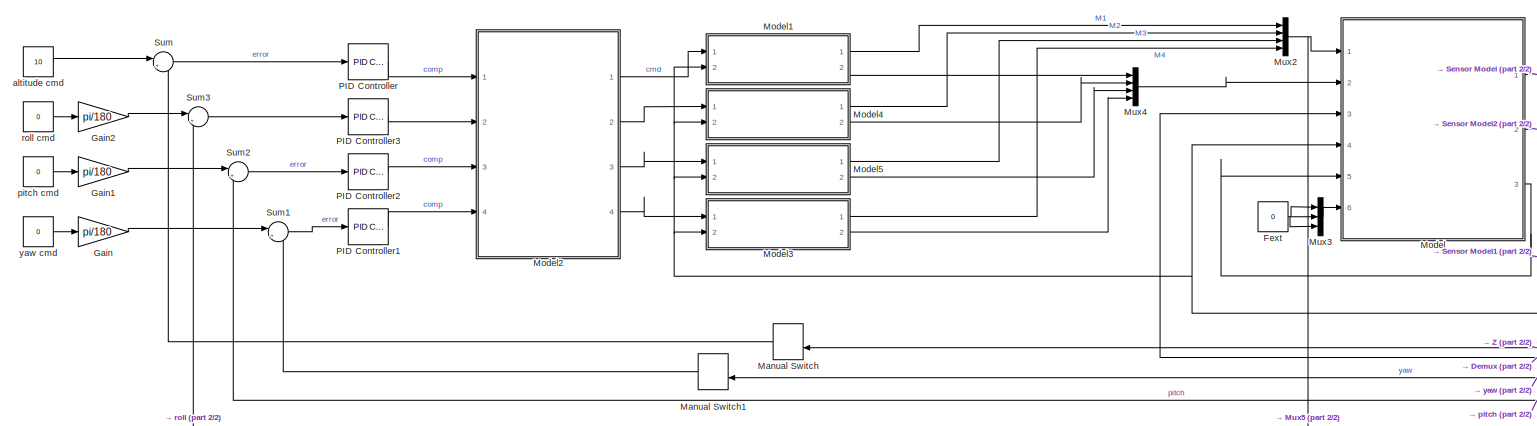
[diagram: root canvas - part 1/2, left side, full height]
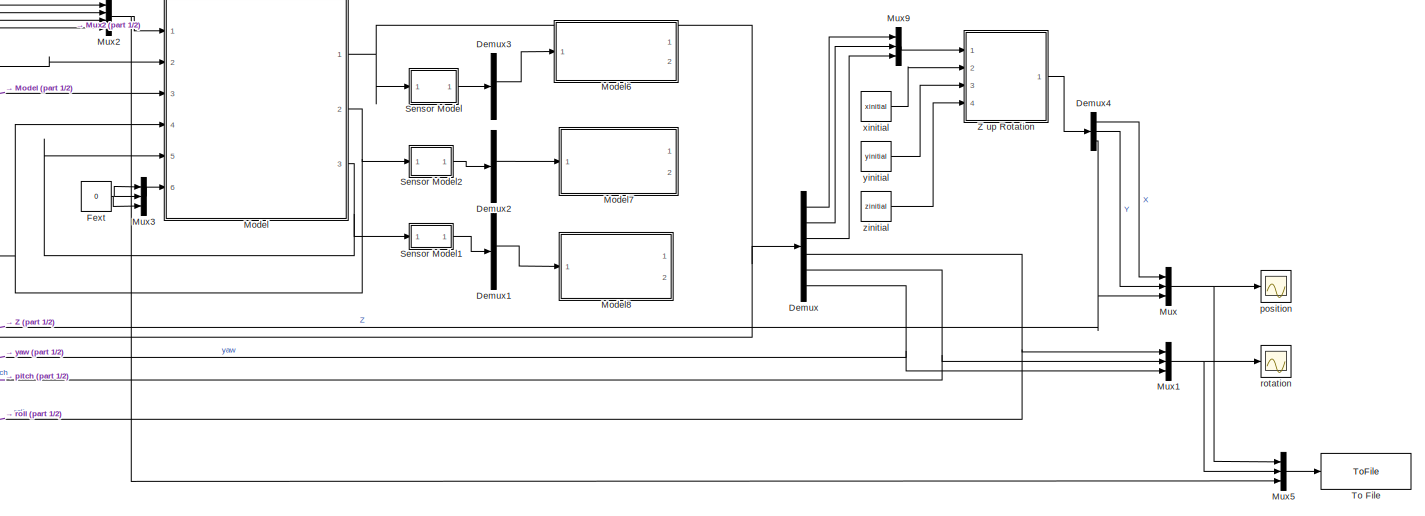
[diagram: root canvas - part 2/2, right side, full height]
MODEL slx_983945e5a16f
KIND model
CONFIG AbsTol = auto
CONFIG EnableMultiTasking = off
CONFIG FixedStep = interval
CONFIG MaxStep = auto
CONFIG MinStep = auto
CONFIG RelTol = 1e-3
CONFIG SampleTimeConstraint = Unconstrained
CONFIG Solver = FixedStepAuto
CONFIG SolverName = FixedStepAuto
CONFIG StartTime = 0.0
CONFIG StopTime = 20
BLOCK [Demux] Demux
  DisplayOption = bar
  Outputs = 6
  Ports = [1, 6]
BLOCK [Demux] Demux1
  DisplayOption = bar
  Outputs = 6
  Ports = [1, 6]
BLOCK [Demux] Demux2
  DisplayOption = bar
  Outputs = 6
  Ports = [1, 6]
BLOCK [Demux] Demux3
  DisplayOption = bar
  Outputs = 6
  Ports = [1, 6]
BLOCK [Demux] Demux4
  DisplayOption = bar
  Outputs = 3
  Ports = [1, 3]
BLOCK [Constant] Fext
  Value = 0
BLOCK [Gain] Gain
  Gain = pi/180
  OutDataTypeStr = Inherit: Inherit via internal rule
  ParamDataTypeStr = Inherit: Inherit via internal rule
  SaturateOnIntegerOverflow = off
BLOCK [Gain] Gain1
  Gain = pi/180
  OutDataTypeStr = Inherit: Inherit via internal rule
  ParamDataTypeStr = Inherit: Inherit via internal rule
  SaturateOnIntegerOverflow = off
BLOCK [Gain] Gain2
  Gain = pi/180
  OutDataTypeStr = Inherit: Inherit via internal rule
  ParamDataTypeStr = Inherit: Inherit via internal rule
  SaturateOnIntegerOverflow = off
BLOCK [ManualSwitch] Manual Switch
  CurrentSetting = 0
BLOCK [ManualSwitch] Manual Switch1
  CurrentSetting = 0
BLOCK [ModelReference] Model
  ModelNameDialog = QC_Dynamics
  ModelReferenceVersion = 1.34
  Ports = [6, 3]
  Variant = off
BLOCK [ModelReference] Model1
  ModelNameDialog = motorthrust
  ModelReferenceVersion = 1.28
  Ports = [2, 2]
  Variant = off
BLOCK [ModelReference] Model2
  ModelNameDialog = flightcontroller.slx
  ModelReferenceVersion = 1.19
  Ports = [4, 4]
  Variant = off
BLOCK [ModelReference] Model3
  ModelNameDialog = motorthrust
  ModelReferenceVersion = 1.28
  Ports = [2, 2]
  Variant = off
BLOCK [ModelReference] Model4
  ModelNameDialog = motorthrust
  ModelReferenceVersion = 1.28
  Ports = [2, 2]
  Variant = off
BLOCK [ModelReference] Model5
  ModelNameDialog = motorthrust
  ModelReferenceVersion = 1.28
  Ports = [2, 2]
  Variant = off
BLOCK [ModelReference] Model6
  ModelNameDialog = Kfilter
  ModelReferenceVersion = 1.15
  Ports = [1, 2]
  Variant = off
BLOCK [ModelReference] Model7
  ModelNameDialog = Kfilter
  ModelReferenceVersion = 1.15
  Ports = [1, 2]
  Variant = off
BLOCK [ModelReference] Model8
  ModelNameDialog = Kfilter
  ModelReferenceVersion = 1.15
  Ports = [1, 2]
  Variant = off
BLOCK [Mux] Mux
  DisplayOption = bar
  Inputs = 3
  Ports = [3, 1]
BLOCK [Mux] Mux1
  DisplayOption = bar
  Inputs = 3
  Ports = [3, 1]
BLOCK [Mux] Mux2
  DisplayOption = bar
  Ports = [4, 1]
BLOCK [Mux] Mux3
  DisplayOption = bar
  Inputs = 3
  Ports = [3, 1]
BLOCK [Mux] Mux4
  DisplayOption = bar
  Ports = [4, 1]
BLOCK [Mux] Mux5
  DisplayOption = bar
  Inputs = 3
  Ports = [3, 1]
BLOCK [Mux] Mux9
  DisplayOption = bar
  Inputs = 3
  Ports = [3, 1]
BLOCK [Reference] PID Controller  REF=simulink/Continuous/PID Controller
  Ports = [1, 1]
  SourceBlock = simulink/Continuous/PID Controller
  SourceProductBaseCode = SL
  SourceProductName = Simulink
  SourceType = PID 1dof
BLOCK [Reference] PID Controller1  REF=simulink/Continuous/PID Controller
  Ports = [1, 1]
  SourceBlock = simulink/Continuous/PID Controller
  SourceProductBaseCode = SL
  SourceProductName = Simulink
  SourceType = PID 1dof
BLOCK [Reference] PID Controller2  REF=simulink/Continuous/PID Controller
  Ports = [1, 1]
  SourceBlock = simulink/Continuous/PID Controller
  SourceProductBaseCode = SL
  SourceProductName = Simulink
  SourceType = PID 1dof
BLOCK [Reference] PID Controller3  REF=simulink/Continuous/PID Controller
  Ports = [1, 1]
  SourceBlock = simulink/Continuous/PID Controller
  SourceProductBaseCode = SL
  SourceProductName = Simulink
  SourceType = PID 1dof
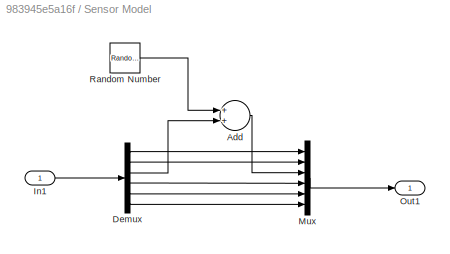
BLOCK [SubSystem] Sensor Model
  Ports = [1, 1]
  RequestExecContextInheritance = off
  Variant = off
BLOCK [Sum] Sensor Model/Add
  InputSameDT = off
  OutDataTypeStr = Inherit: Inherit via internal rule
  Ports = [2, 1]
  SaturateOnIntegerOverflow = off
BLOCK [Demux] Sensor Model/Demux
  DisplayOption = bar
  Outputs = 6
  Ports = [1, 6]
BLOCK [Inport] Sensor Model/In1
  IconDisplay = Port number
BLOCK [Mux] Sensor Model/Mux
  DisplayOption = bar
  Inputs = 6
  Ports = [6, 1]
BLOCK [Outport] Sensor Model/Out1
  IconDisplay = Port number
BLOCK [RandomNumber] Sensor Model/Random Number
  SampleTime = 0.01
  Variance = .1143
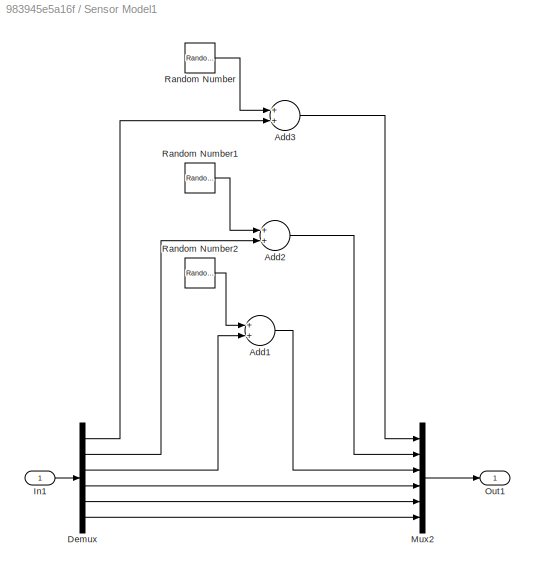
BLOCK [SubSystem] Sensor Model1
  Ports = [1, 1]
  RequestExecContextInheritance = off
  Variant = off
BLOCK [Sum] Sensor Model1/Add1
  InputSameDT = off
  OutDataTypeStr = Inherit: Inherit via internal rule
  Ports = [2, 1]
  SaturateOnIntegerOverflow = off
BLOCK [Sum] Sensor Model1/Add2
  InputSameDT = off
  OutDataTypeStr = Inherit: Inherit via internal rule
  Ports = [2, 1]
  SaturateOnIntegerOverflow = off
BLOCK [Sum] Sensor Model1/Add3
  InputSameDT = off
  OutDataTypeStr = Inherit: Inherit via internal rule
  Ports = [2, 1]
  SaturateOnIntegerOverflow = off
BLOCK [Demux] Sensor Model1/Demux
  DisplayOption = bar
  Outputs = 6
  Ports = [1, 6]
BLOCK [Inport] Sensor Model1/In1
  IconDisplay = Port number
BLOCK [Mux] Sensor Model1/Mux2
  DisplayOption = bar
  Inputs = 6
  Ports = [6, 1]
BLOCK [Outport] Sensor Model1/Out1
  IconDisplay = Port number
BLOCK [RandomNumber] Sensor Model1/Random Number
  SampleTime = 0.01
  Variance = [0.000980665]
BLOCK [RandomNumber] Sensor Model1/Random Number1
  SampleTime = 0.01
  Variance = [0.000980665]
BLOCK [RandomNumber] Sensor Model1/Random Number2
  SampleTime = 0.01
  Variance = [0.000980665]
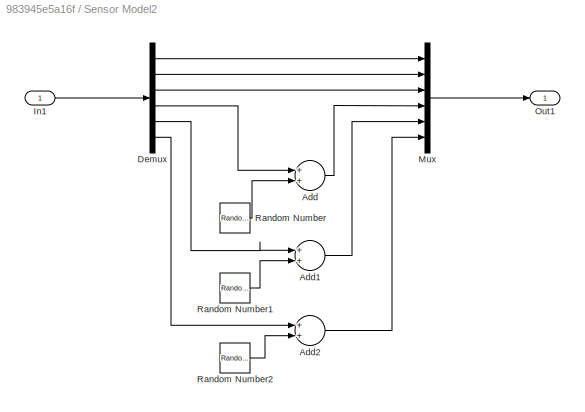
BLOCK [SubSystem] Sensor Model2
  Ports = [1, 1]
  RequestExecContextInheritance = off
  Variant = off
BLOCK [Sum] Sensor Model2/Add
  InputSameDT = off
  OutDataTypeStr = Inherit: Inherit via internal rule
  Ports = [2, 1]
  SaturateOnIntegerOverflow = off
BLOCK [Sum] Sensor Model2/Add1
  InputSameDT = off
  OutDataTypeStr = Inherit: Inherit via internal rule
  Ports = [2, 1]
  SaturateOnIntegerOverflow = off
BLOCK [Sum] Sensor Model2/Add2
  InputSameDT = off
  OutDataTypeStr = Inherit: Inherit via internal rule
  Ports = [2, 1]
  SaturateOnIntegerOverflow = off
BLOCK [Demux] Sensor Model2/Demux
  DisplayOption = bar
  Outputs = 6
  Ports = [1, 6]
BLOCK [Inport] Sensor Model2/In1
  IconDisplay = Port number
BLOCK [Mux] Sensor Model2/Mux
  DisplayOption = bar
  Inputs = 6
  Ports = [6, 1]
BLOCK [Outport] Sensor Model2/Out1
  IconDisplay = Port number
BLOCK [RandomNumber] Sensor Model2/Random Number
  SampleTime = 0.01
  Variance = [0.0000523599]
BLOCK [RandomNumber] Sensor Model2/Random Number1
  SampleTime = 0.01
  Variance = [0.0000523599]
BLOCK [RandomNumber] Sensor Model2/Random Number2
  SampleTime = 0.01
  Variance = [0.0000523599]
BLOCK [Sum] Sum
  IconShape = round
  InputSameDT = off
  Inputs = |+-
  OutDataTypeStr = Inherit: Inherit via internal rule
  Ports = [2, 1]
  SaturateOnIntegerOverflow = off
BLOCK [Sum] Sum1
  IconShape = round
  InputSameDT = off
  Inputs = |+-
  OutDataTypeStr = Inherit: Inherit via internal rule
  Ports = [2, 1]
  SaturateOnIntegerOverflow = off
BLOCK [Sum] Sum2
  IconShape = round
  InputSameDT = off
  Inputs = |+-
  OutDataTypeStr = Inherit: Inherit via internal rule
  Ports = [2, 1]
  SaturateOnIntegerOverflow = off
BLOCK [Sum] Sum3
  IconShape = round
  InputSameDT = off
  Inputs = |+-
  OutDataTypeStr = Inherit: Inherit via internal rule
  Ports = [2, 1]
  SaturateOnIntegerOverflow = off
BLOCK [ToFile] To File
  Filename = quad_pos.mat
  Ports = [1]
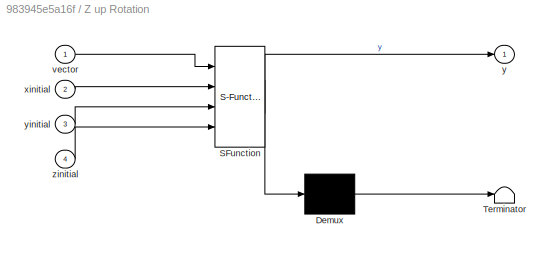
BLOCK [SubSystem] Z up Rotation
  ErrorFcn = Stateflow.Translate.translate
  PermitHierarchicalResolution = ExplicitOnly
  Ports = [4, 1]
  RequestExecContextInheritance = off
  SFBlockType = MATLAB Function
  TreatAsAtomicUnit = on
  Variant = off
BLOCK [Demux] Z up Rotation/ Demux 
  Outputs = 1
  Ports = [1, 1]
BLOCK [S-Function] Z up Rotation/ SFunction 
  EnableBusSupport = on
  FunctionName = sf_sfun
  PortCounts = [4 2]
  Ports = [4, 2]
  SFcnIsStateOwnerBlock = off
  SFunctionDeploymentMode = off
  Tag = Stateflow S-Function systemmain 2
BLOCK [Terminator] Z up Rotation/ Terminator 
BLOCK [Inport] Z up Rotation/vector
  IconDisplay = Port number
BLOCK [Inport] Z up Rotation/xinitial
  IconDisplay = Port number
  Port = 2
BLOCK [Outport] Z up Rotation/y
  IconDisplay = Port number
BLOCK [Inport] Z up Rotation/yinitial
  IconDisplay = Port number
  Port = 3
BLOCK [Inport] Z up Rotation/zinitial
  IconDisplay = Port number
  Port = 4
BLOCK [Constant] altitude cmd
  Value = 10
BLOCK [Constant] pitch cmd
  Value = 0
BLOCK [Scope] position 
  NumInputPorts = 1
  Ports = [1]
  ScopeSpecificationString = Simulink.scopes.TimeScopeBlockCfg('CurrentConfiguration', extmgr.ConfigurationSet(extmgr.Configuration('Core','General UI',true),extmgr.Configuration('Core','Source UI',true),extmgr.Configuration('Sources','WiredSimulink',true,'DataLoggingVariableName','ScopeData1'),extmgr.Configuration('Visuals','Time Domain',true,'SerializedDisplays',{struct('MinYLimReal','-1.3528','MaxYLimReal','12.17521','YLab...<+1417ch>
BLOCK [Constant] roll cmd
  Value = 0
BLOCK [Scope] rotation
  NumInputPorts = 1
  Ports = [1]
  ScopeSpecificationString = Simulink.scopes.TimeScopeBlockCfg('CurrentConfiguration', extmgr.ConfigurationSet(extmgr.Configuration('Core','General UI',true),extmgr.Configuration('Core','Source UI',true),extmgr.Configuration('Sources','WiredSimulink',true),extmgr.Configuration('Visuals','Time Domain',true,'SerializedDisplays',{struct('MinYLimReal','-2.15137','MaxYLimReal','2.34291','YLabelReal','','MinYLimMag','0.00000','MaxY...<+1388ch>
BLOCK [Constant] xinitial
  Value = xinitial
BLOCK [Constant] yaw cmd
  Value = 0
BLOCK [Constant] yinitial
  Value = yinitial
BLOCK [Constant] zinitial
  Value = zinitial
LINE Demux1:3 -> Model8:1
LINE Demux2:3 -> Model7:1
LINE Demux3:3 -> Model6:1
LINE Demux4:1 -> Mux:1
LINE Demux4:2 -> Mux:2
NET Demux4:3 -> Manual Switch:2, Mux:3
LINE Demux:1 -> Mux9:1
LINE Demux:2 -> Mux9:2
LINE Demux:3 -> Mux9:3
NET Demux:4 -> Mux1:1, Sum3:2
NET Demux:5 -> Mux1:2, Sum2:2
NET Demux:6 -> Manual Switch1:2, Mux1:3
NET Fext:1 -> Mux3:1, Mux3:2, Mux3:3
LINE Gain1:1 -> Sum2:1
LINE Gain2:1 -> Sum3:1
LINE Gain:1 -> Sum1:1
LINE Manual Switch1:1 -> Sum1:2
LINE Manual Switch:1 -> Sum:2
LINE Model1:1 -> Mux2:1
LINE Model1:2 -> Mux4:1
LINE Model2:1 -> Model1:1
LINE Model2:2 -> Model4:1
LINE Model2:3 -> Model5:1
LINE Model2:4 -> Model3:1
LINE Model3:1 -> Mux2:4
LINE Model3:2 -> Mux4:4
LINE Model4:1 -> Mux2:2
LINE Model4:2 -> Mux4:2
LINE Model5:1 -> Mux2:3
LINE Model5:2 -> Mux4:3
NET Model:1 -> Demux:1, Model:3, Sensor Model:1
NET Model:2 -> Model1:2, Model3:2, Model4:2, Model5:2, Model:4, Sensor Model2:1
NET Model:3 -> Model:5, Sensor Model1:1
NET Mux1:1 -> Mux5:2, rotation:1
NET Mux2:1 -> Model:1, Mux5:3
LINE Mux3:1 -> Model:6
LINE Mux4:1 -> Model:2
LINE Mux5:1 -> To File:1
LINE Mux9:1 -> Z up Rotation:1
NET Mux:1 -> Mux5:1, position :1
LINE PID Controller1:1 -> Model2:4
LINE PID Controller2:1 -> Model2:3
LINE PID Controller3:1 -> Model2:2
LINE PID Controller:1 -> Model2:1
LINE Sensor Model/Add:1 -> Sensor Model/Mux:3
LINE Sensor Model/Demux:1 -> Sensor Model/Mux:1
LINE Sensor Model/Demux:2 -> Sensor Model/Mux:2
LINE Sensor Model/Demux:3 -> Sensor Model/Add:2
LINE Sensor Model/Demux:4 -> Sensor Model/Mux:4
LINE Sensor Model/Demux:5 -> Sensor Model/Mux:5
LINE Sensor Model/Demux:6 -> Sensor Model/Mux:6
LINE Sensor Model/In1:1 -> Sensor Model/Demux:1
LINE Sensor Model/Mux:1 -> Sensor Model/Out1:1
LINE Sensor Model/Random Number:1 -> Sensor Model/Add:1
LINE Sensor Model1/Add1:1 -> Sensor Model1/Mux2:3
LINE Sensor Model1/Add2:1 -> Sensor Model1/Mux2:2
LINE Sensor Model1/Add3:1 -> Sensor Model1/Mux2:1
LINE Sensor Model1/Demux:1 -> Sensor Model1/Add3:2
LINE Sensor Model1/Demux:2 -> Sensor Model1/Add2:2
LINE Sensor Model1/Demux:3 -> Sensor Model1/Add1:2
LINE Sensor Model1/Demux:4 -> Sensor Model1/Mux2:4
LINE Sensor Model1/Demux:5 -> Sensor Model1/Mux2:5
LINE Sensor Model1/Demux:6 -> Sensor Model1/Mux2:6
LINE Sensor Model1/In1:1 -> Sensor Model1/Demux:1
LINE Sensor Model1/Mux2:1 -> Sensor Model1/Out1:1
LINE Sensor Model1/Random Number1:1 -> Sensor Model1/Add2:1
LINE Sensor Model1/Random Number2:1 -> Sensor Model1/Add1:1
LINE Sensor Model1/Random Number:1 -> Sensor Model1/Add3:1
LINE Sensor Model1:1 -> Demux1:1
LINE Sensor Model2/Add1:1 -> Sensor Model2/Mux:5
LINE Sensor Model2/Add2:1 -> Sensor Model2/Mux:6
LINE Sensor Model2/Add:1 -> Sensor Model2/Mux:4
LINE Sensor Model2/Demux:1 -> Sensor Model2/Mux:1
LINE Sensor Model2/Demux:2 -> Sensor Model2/Mux:2
LINE Sensor Model2/Demux:3 -> Sensor Model2/Mux:3
LINE Sensor Model2/Demux:4 -> Sensor Model2/Add:1
LINE Sensor Model2/Demux:5 -> Sensor Model2/Add1:1
LINE Sensor Model2/Demux:6 -> Sensor Model2/Add2:1
LINE Sensor Model2/In1:1 -> Sensor Model2/Demux:1
LINE Sensor Model2/Mux:1 -> Sensor Model2/Out1:1
LINE Sensor Model2/Random Number1:1 -> Sensor Model2/Add1:2
LINE Sensor Model2/Random Number2:1 -> Sensor Model2/Add2:2
LINE Sensor Model2/Random Number:1 -> Sensor Model2/Add:2
LINE Sensor Model2:1 -> Demux2:1
LINE Sensor Model:1 -> Demux3:1
LINE Sum1:1 -> PID Controller1:1
LINE Sum2:1 -> PID Controller2:1
LINE Sum3:1 -> PID Controller3:1
LINE Sum:1 -> PID Controller:1
LINE Z up Rotation:1 -> Demux4:1
LINE altitude cmd:1 -> Sum:1
LINE pitch cmd:1 -> Gain1:1
LINE roll cmd:1 -> Gain2:1
LINE xinitial:1 -> Z up Rotation:2
LINE yaw cmd:1 -> Gain:1
LINE yinitial:1 -> Z up Rotation:3
LINE zinitial:1 -> Z up Rotation:4
note: NET lines group one-source signal fan-out (src -> all destinations, sorted); 1:1 wires keep LINE
CHART Z up Rotation states=1 transitions=1
  STATE_LABEL 'eML_blk_kernel()'
  STATE_LABEL 'SCRIPT:\nfunction y = fcn(vector, xinitial, yinitial, zinitial)\n%%%% this function rotates the input 180 about x to make z up\n\nrot=[pi,0,0];\n\n%R=[1,0,0;0,cos(rot(1)),-sin(rot(1));0,sin(rot(1)),cos(rot(1))]*[cos(rot(2)),0, -sin(rot(2));0,1,0;sin(rot(2)),0,cos(rot(2))]*[cos(rot(3)),-sin(rot(3)),0;sin(rot(3)),cos(rot(3)),0;0,0,1];\n\nRx=[1,0,0;0,cos(rot(1)),-sin(rot(1));0,sin(rot(1)),cos(rot(1))];\nRy=[c...<+186ch>'
